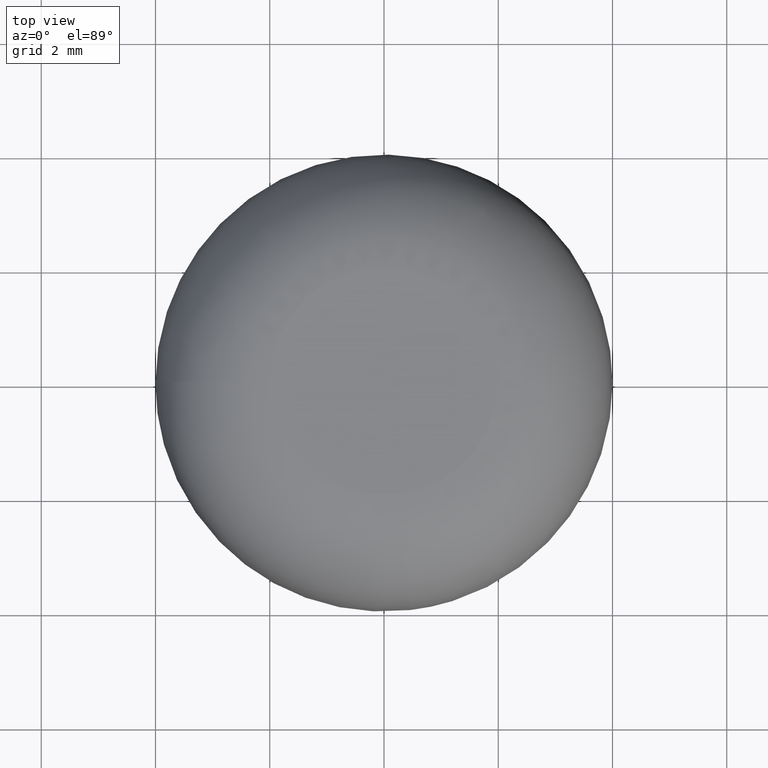
[diagram: clean part render]
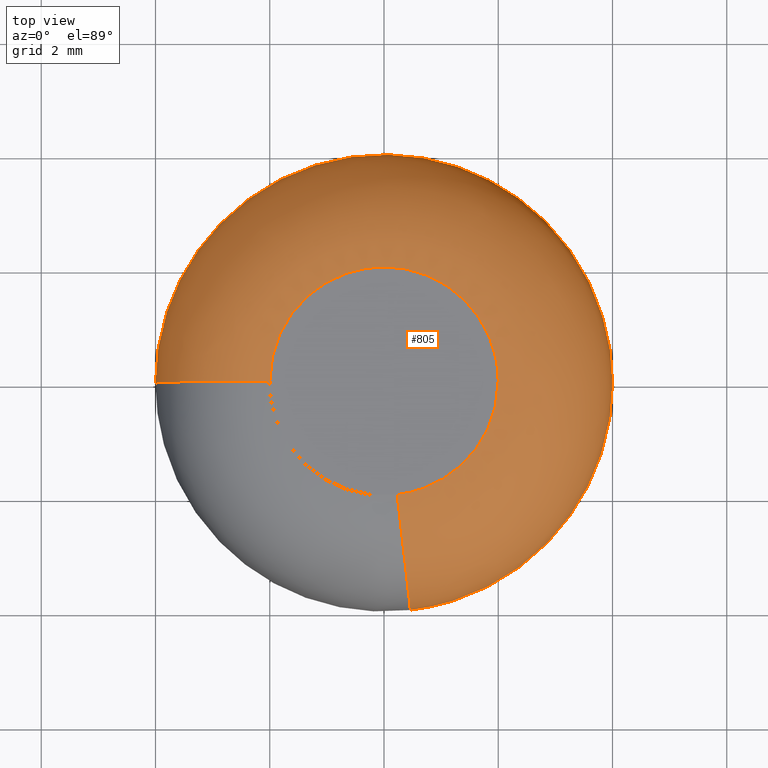
[diagram: same view with one face highlighted and labeled with its STEP entity id]
A machine part, top view. The second image highlights one B-rep face of the part: STEP entity #805.
In plain terms, the highlighted face is a freeform B-spline surface patch.
Its self-contained STEP definition (entity closure, byte-faithful):
#631=CARTESIAN_POINT('',(0.230926632963222,-1.986623489789872,6.0));
#632=VERTEX_POINT('',#631);
#633=CARTESIAN_POINT('',(-2.0,0.0,6.0));
#634=VERTEX_POINT('',#633);
#650=CARTESIAN_POINT('',(-4.0,0.0,4.0));
#651=VERTEX_POINT('',#650);
#652=CARTESIAN_POINT('',(-4.0,0.0,4.0));
#653=CARTESIAN_POINT('',(-4.0,0.0,6.000000000000001));
#654=CARTESIAN_POINT('',(-1.999999999999999,0.0,6.000000000000002));
#662=(BOUNDED_CURVE()B_SPLINE_CURVE(2,(#652,#653,#654),.UNSPECIFIED.,.F.,.U.)B_SPLINE_CURVE_WITH_KNOTS((3,3),(0.0,0.250000000000000),.UNSPECIFIED.)CURVE()GEOMETRIC_REPRESENTATION_ITEM()RATIONAL_B_SPLINE_CURVE((1.0,0.707106781186547,1.0))REPRESENTATION_ITEM(''));
#663=EDGE_CURVE('',#651,#634,#662,.T.);
#665=CARTESIAN_POINT('',(0.461856760234681,-3.973246573398824,4.0));
#666=VERTEX_POINT('',#665);
#682=CARTESIAN_POINT('',(0.461856760234681,-3.973246573398824,4.000000000000000));
#683=CARTESIAN_POINT('',(0.461855925926124,-3.973246670380268,6.000000000001688));
#684=CARTESIAN_POINT('',(0.230926632963222,-1.986623489789873,5.999999999999999));
#692=(BOUNDED_CURVE()B_SPLINE_CURVE(2,(#682,#683,#684),.UNSPECIFIED.,.F.,.U.)B_SPLINE_CURVE_WITH_KNOTS((3,3),(0.0,0.250000000000149),.UNSPECIFIED.)CURVE()GEOMETRIC_REPRESENTATION_ITEM()RATIONAL_B_SPLINE_CURVE((0.956886118190660,0.676620662995720,0.956886118190994))REPRESENTATION_ITEM(''));
#693=EDGE_CURVE('',#666,#632,#692,.T.);
#698=CARTESIAN_POINT('',(-4.0,0.0,4.0));
#699=CARTESIAN_POINT('',(-4.000000000000000,0.0,6.0));
#700=CARTESIAN_POINT('',(-2.0,0.0,6.0));
#701=CARTESIAN_POINT('',(-1.928311224608411,0.0,6.000000000000001));
#702=CARTESIAN_POINT('',(-1.856806427201538,0.0,5.994867314061067));
#703=CARTESIAN_POINT('',(-4.000000000000000,4.000000000000000,4.000000000000000));
#704=CARTESIAN_POINT('',(-3.999999999999999,3.999999999999999,6.0));
#705=CARTESIAN_POINT('',(-2.000000000000000,2.000000000000000,6.0));
#706=CARTESIAN_POINT('',(-1.928311224608410,1.928311224608410,6.0));
#707=CARTESIAN_POINT('',(-1.856806427201538,1.856806427201538,5.994867314061068));
#708=CARTESIAN_POINT('',(0.0,4.0,4.0));
#709=CARTESIAN_POINT('',(0.0,4.000000000000000,6.0));
#710=CARTESIAN_POINT('',(0.0,2.0,6.0));
#711=CARTESIAN_POINT('',(0.0,1.928311224608411,6.000000000000001));
#712=CARTESIAN_POINT('',(0.0,1.856806427201538,5.994867314061067));
#713=CARTESIAN_POINT('',(4.000000000000000,4.000000000000000,4.000000000000000));
#714=CARTESIAN_POINT('',(3.999999999999999,3.999999999999999,6.0));
#715=CARTESIAN_POINT('',(2.000000000000000,2.000000000000000,6.0));
#716=CARTESIAN_POINT('',(1.928311224608410,1.928311224608410,6.0));
#717=CARTESIAN_POINT('',(1.856806427201538,1.856806427201538,5.994867314061068));
#718=CARTESIAN_POINT('',(4.0,0.0,4.0));
#719=CARTESIAN_POINT('',(4.000000000000000,0.0,6.0));
#720=CARTESIAN_POINT('',(2.0,0.0,6.0));
#721=CARTESIAN_POINT('',(1.928311224608411,0.0,6.000000000000001));
#722=CARTESIAN_POINT('',(1.856806427201538,0.0,5.994867314061067));
#723=CARTESIAN_POINT('',(4.000000000000000,-3.561966803307774,4.000000000000000));
#724=CARTESIAN_POINT('',(4.000000000000001,-3.561966803307774,6.000000000000001));
#725=CARTESIAN_POINT('',(2.000000000000000,-1.780983401653888,6.000000000000001));
#726=CARTESIAN_POINT('',(1.928311224608412,-1.717145142125230,6.000000000000003));
#727=CARTESIAN_POINT('',(1.856806427201539,-1.653470713465099,5.994867314061068));
#728=CARTESIAN_POINT('',(0.461856917308296,-3.973246555140328,4.0));
#729=CARTESIAN_POINT('',(0.461856917308296,-3.973246555140327,6.000000000000001));
#730=CARTESIAN_POINT('',(0.230928458654148,-1.986623277570163,6.000000000000001));
#731=CARTESIAN_POINT('',(0.222650969452156,-1.915413982603448,5.999999999999999));
#732=CARTESIAN_POINT('',(0.214394723126383,-1.844387435110233,5.994867314061068));
#740=(BOUNDED_SURFACE()B_SPLINE_SURFACE(2,2,((#698,#703,#708,#713,#718,#723,#728),(#699,#704,#709,#714,#719,#724,#729),(#700,#705,#710,#715,#720,#725,#730),(#701,#706,#711,#716,#721,#726,#731),(#702,#707,#712,#717,#722,#727,#732)),.UNSPECIFIED.,.F.,.F.,.U.)B_SPLINE_SURFACE_WITH_KNOTS((3,2,3),(3,2,2,3),(0.0,3.313708498984761,3.479228238509049),(0.0,6.627416997969520,13.254833995939039,19.352057634070999),.UNSPECIFIED.)GEOMETRIC_REPRESENTATION_ITEM()RATIONAL_B_SPLINE_SURFACE(((1.0,0.707106781186548,1.0,0.707106781186548,1.0,0.730538238691624,0.956886118190660),(0.707106781186548,0.500000000000000,0.707106781186548,0.500000000000000,0.707106781186548,0.516568542494924,0.676620662995888),(1.0,0.707106781186548,1.0,0.707106781186548,1.0,0.730538238691624,0.956886118190660),(0.985369983720268,0.696761797466280,0.985369983720268,0.696761797466280,0.985369983720268,0.719850452366599,0.942886858703681),(0.972201506066881,0.687450277619666,0.972201506066881,0.687450277619666,0.972201506066881,0.710230375895443,0.930286125239451)))REPRESENTATION_ITEM('')SURFACE());
#741=CARTESIAN_POINT('',(2.0,0.0,6.0));
#742=VERTEX_POINT('',#741);
#743=CARTESIAN_POINT('',(2.0,0.0,6.0));
#744=CARTESIAN_POINT('',(2.000000000000000,-1.780985049384523,6.0));
#745=CARTESIAN_POINT('',(0.230926632963222,-1.986623489789872,6.000000000000001));
#753=(BOUNDED_CURVE()B_SPLINE_CURVE(2,(#743,#744,#745),.UNSPECIFIED.,.F.,.U.)B_SPLINE_CURVE_WITH_KNOTS((3,3),(0.500000000000000,0.730000155452255),.UNSPECIFIED.)CURVE()GEOMETRIC_REPRESENTATION_ITEM()RATIONAL_B_SPLINE_CURVE((1.0,0.730538056567979,0.956886424158610))REPRESENTATION_ITEM(''));
#754=EDGE_CURVE('',#742,#632,#753,.T.);
#755=ORIENTED_EDGE('',*,*,#754,.T.);
#756=ORIENTED_EDGE('',*,*,#693,.F.);
#757=CARTESIAN_POINT('',(4.0,0.0,4.0));
#758=VERTEX_POINT('',#757);
#759=CARTESIAN_POINT('',(4.0,0.0,4.0));
#760=CARTESIAN_POINT('',(4.000000000000000,-3.561967086833224,4.000000000000000));
#761=CARTESIAN_POINT('',(0.461856760234681,-3.973246573398825,4.000000000000001));
#769=(BOUNDED_CURVE()B_SPLINE_CURVE(2,(#759,#760,#761),.UNSPECIFIED.,.F.,.U.)B_SPLINE_CURVE_WITH_KNOTS((3,3),(0.500000000000000,0.730000013374358),.UNSPECIFIED.)CURVE()GEOMETRIC_REPRESENTATION_ITEM()RATIONAL_B_SPLINE_CURVE((1.0,0.730538223022588,0.956886144514641))REPRESENTATION_ITEM(''));
#770=EDGE_CURVE('',#758,#666,#769,.T.);
#771=ORIENTED_EDGE('',*,*,#770,.F.);
#772=CARTESIAN_POINT('',(-4.0,0.0,4.0));
#773=CARTESIAN_POINT('',(-4.000000000000000,4.000000000000000,4.000000000000000));
#774=CARTESIAN_POINT('',(0.0,4.0,4.0));
#775=CARTESIAN_POINT('',(4.000000000000000,4.000000000000000,4.000000000000000));
#776=CARTESIAN_POINT('',(4.0,0.0,4.0));
#784=(BOUNDED_CURVE()B_SPLINE_CURVE(2,(#772,#773,#774,#775,#776),.UNSPECIFIED.,.F.,.U.)B_SPLINE_CURVE_WITH_KNOTS((3,2,3),(0.0,0.250000000000000,0.500000000000000),.UNSPECIFIED.)CURVE()GEOMETRIC_REPRESENTATION_ITEM()RATIONAL_B_SPLINE_CURVE((1.0,0.707106781186548,1.0,0.707106781186548,1.0))REPRESENTATION_ITEM(''));
#785=EDGE_CURVE('',#651,#758,#784,.T.);
#786=ORIENTED_EDGE('',*,*,#785,.F.);
#787=ORIENTED_EDGE('',*,*,#663,.T.);
#788=CARTESIAN_POINT('',(-2.0,0.0,6.0));
#789=CARTESIAN_POINT('',(-2.000000000000000,2.000000000000000,6.0));
#790=CARTESIAN_POINT('',(0.0,2.0,6.0));
#791=CARTESIAN_POINT('',(2.000000000000000,2.000000000000000,6.0));
#792=CARTESIAN_POINT('',(2.0,0.0,6.0));
#800=(BOUNDED_CURVE()B_SPLINE_CURVE(2,(#788,#789,#790,#791,#792),.UNSPECIFIED.,.F.,.U.)B_SPLINE_CURVE_WITH_KNOTS((3,2,3),(0.0,0.250000000000000,0.500000000000000),.UNSPECIFIED.)CURVE()GEOMETRIC_REPRESENTATION_ITEM()RATIONAL_B_SPLINE_CURVE((1.0,0.707106781186548,1.0,0.707106781186548,1.0))REPRESENTATION_ITEM(''));
#801=EDGE_CURVE('',#634,#742,#800,.T.);
#802=ORIENTED_EDGE('',*,*,#801,.T.);
#803=EDGE_LOOP('',(#755,#756,#771,#786,#787,#802));
#804=FACE_OUTER_BOUND('',#803,.T.);
#805=ADVANCED_FACE('',(#804),#740,.T.);